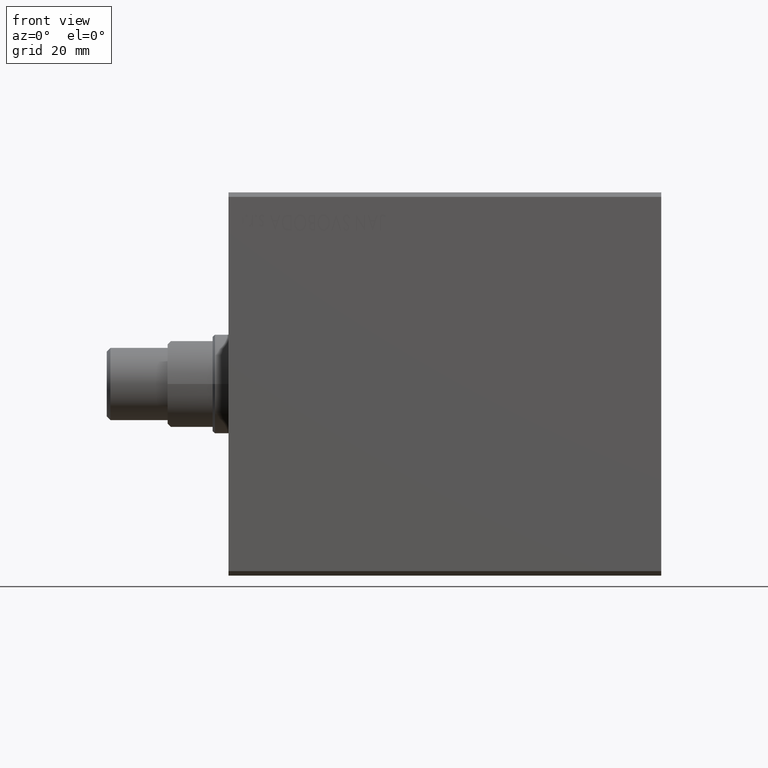
[diagram: clean part render]
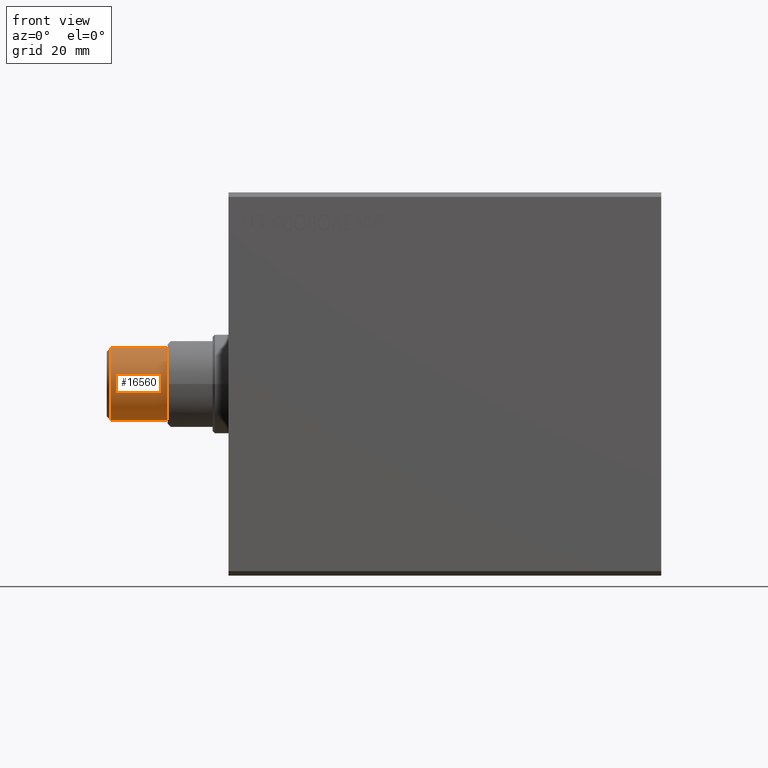
[diagram: same view with one face highlighted and labeled with its STEP entity id]
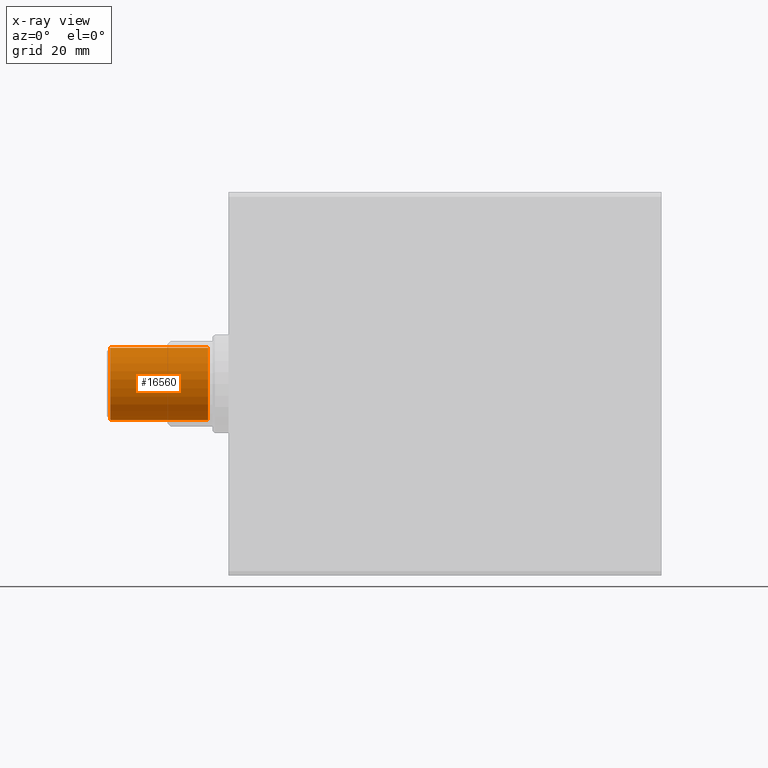
[diagram: x-ray of the same camera — body ghosted, the highlighted face saturated]
A machine part, front view. The second image highlights one B-rep face of the part: STEP entity #16560.
The next image is the same camera in x-ray: the body ghosted, the highlighted face saturated — about 0% of this face is hidden behind the body in this view.
In plain terms, the highlighted cylindrical surface (edge-blend (fillet) strip) has radius 8 mm, axis along (-1, -0, 0).
Its self-contained STEP definition (entity closure, byte-faithful):
#1334 = EDGE_LOOP ( 'NONE', ( #41265, #41853, #27329, #41077 ) ) ;
#1354 = DIRECTION ( 'NONE',  ( -0.000000000000000000, -0.000000000000000000, -1.000000000000000000 ) ) ;
#2003 = EDGE_CURVE ( 'NONE', #36330, #42442, #15656, .T. ) ;
#4428 = VECTOR ( 'NONE', #1354, 1000.000000000000000 ) ;
#6483 = CARTESIAN_POINT ( 'NONE',  ( 8.000000000000000000, 9.797174393178823685E-16, 22.50000000000000000 ) ) ;
#7212 = DIRECTION ( 'NONE',  ( -1.000000000000000000, 0.000000000000000000, 0.000000000000000000 ) ) ;
#8307 = LINE ( 'NONE', #42510, #4428 ) ;
#9486 = CYLINDRICAL_SURFACE ( 'NONE', #25987, 8.000000000000000000 ) ;
#9880 = DIRECTION ( 'NONE',  ( 0.000000000000000000, 0.000000000000000000, 1.000000000000000000 ) ) ;
#11820 = DIRECTION ( 'NONE',  ( -0.000000000000000000, -0.000000000000000000, 1.000000000000000000 ) ) ;
#13301 = DIRECTION ( 'NONE',  ( -0.000000000000000000, -0.000000000000000000, -1.000000000000000000 ) ) ;
#14072 = CARTESIAN_POINT ( 'NONE',  ( -8.000000000000000000, 0.000000000000000000, 0.8000000000000055955 ) ) ;
#15656 = CIRCLE ( 'NONE', #40819, 8.000000000000000000 ) ;
#15750 = EDGE_CURVE ( 'NONE', #37705, #36330, #8307, .T. ) ;
#15934 = VERTEX_POINT ( 'NONE', #18104 ) ;
#16560 = ADVANCED_FACE ( 'NONE', ( #20057 ), #9486, .T. ) ;
#18104 = CARTESIAN_POINT ( 'NONE',  ( 8.000000000000000000, 9.797174393178823685E-16, 22.50000000000000000 ) ) ;
#18574 = DIRECTION ( 'NONE',  ( 1.000000000000000000, 0.000000000000000000, 0.000000000000000000 ) ) ;
#20057 = FACE_OUTER_BOUND ( 'NONE', #1334, .T. ) ;
#20224 = DIRECTION ( 'NONE',  ( 1.000000000000000000, 0.000000000000000000, 0.000000000000000000 ) ) ;
#20635 = VECTOR ( 'NONE', #26278, 1000.000000000000000 ) ;
#21105 = CARTESIAN_POINT ( 'NONE',  ( -8.000000000000000000, 0.000000000000000000, 22.50000000000000000 ) ) ;
#23290 = CIRCLE ( 'NONE', #41253, 8.000000000000000000 ) ;
#24483 = CARTESIAN_POINT ( 'NONE',  ( 0.000000000000000000, 0.000000000000000000, 22.50000000000000000 ) ) ;
#25987 = AXIS2_PLACEMENT_3D ( 'NONE', #30424, #13301, #7212 ) ;
#26278 = DIRECTION ( 'NONE',  ( -0.000000000000000000, -0.000000000000000000, -1.000000000000000000 ) ) ;
#27053 = EDGE_CURVE ( 'NONE', #37705, #15934, #23290, .T. ) ;
#27329 = ORIENTED_EDGE ( 'NONE', *, *, #15750, .T. ) ;
#30424 = CARTESIAN_POINT ( 'NONE',  ( 0.000000000000000000, 0.000000000000000000, 22.50000000000000000 ) ) ;
#32346 = CARTESIAN_POINT ( 'NONE',  ( 8.000000000000000000, 9.797174393178823685E-16, 0.8000000000000055955 ) ) ;
#36330 = VERTEX_POINT ( 'NONE', #14072 ) ;
#37093 = LINE ( 'NONE', #6483, #20635 ) ;
#37705 = VERTEX_POINT ( 'NONE', #21105 ) ;
#40819 = AXIS2_PLACEMENT_3D ( 'NONE', #42647, #11820, #18574 ) ;
#41077 = ORIENTED_EDGE ( 'NONE', *, *, #2003, .T. ) ;
#41253 = AXIS2_PLACEMENT_3D ( 'NONE', #24483, #9880, #20224 ) ;
#41265 = ORIENTED_EDGE ( 'NONE', *, *, #43956, .F. ) ;
#41853 = ORIENTED_EDGE ( 'NONE', *, *, #27053, .F. ) ;
#42442 = VERTEX_POINT ( 'NONE', #32346 ) ;
#42510 = CARTESIAN_POINT ( 'NONE',  ( -8.000000000000000000, 0.000000000000000000, 22.50000000000000000 ) ) ;
#42647 = CARTESIAN_POINT ( 'NONE',  ( 0.000000000000000000, 0.000000000000000000, 0.8000000000000055955 ) ) ;
#43956 = EDGE_CURVE ( 'NONE', #15934, #42442, #37093, .T. ) ;